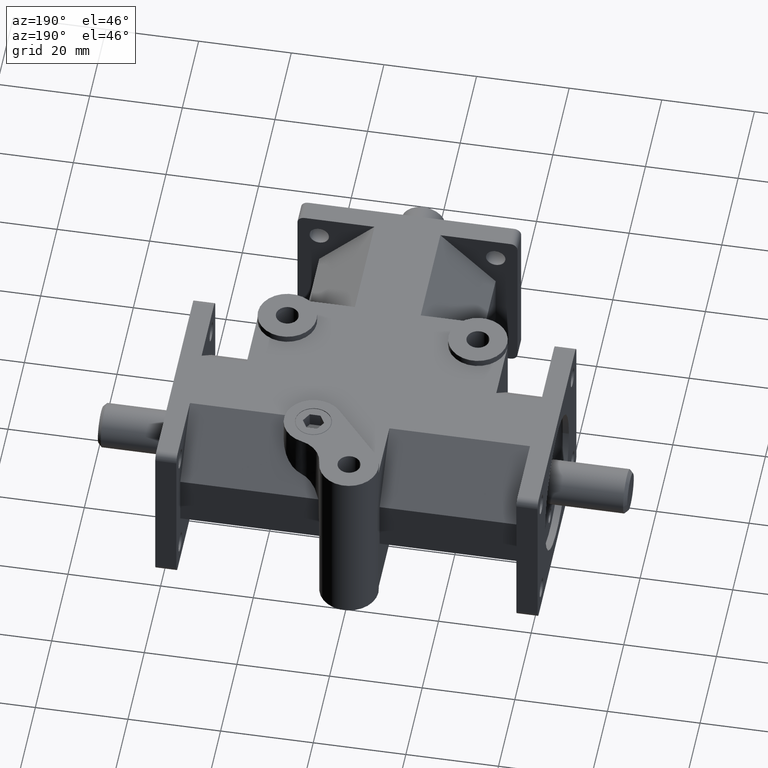
[diagram: clean part render]
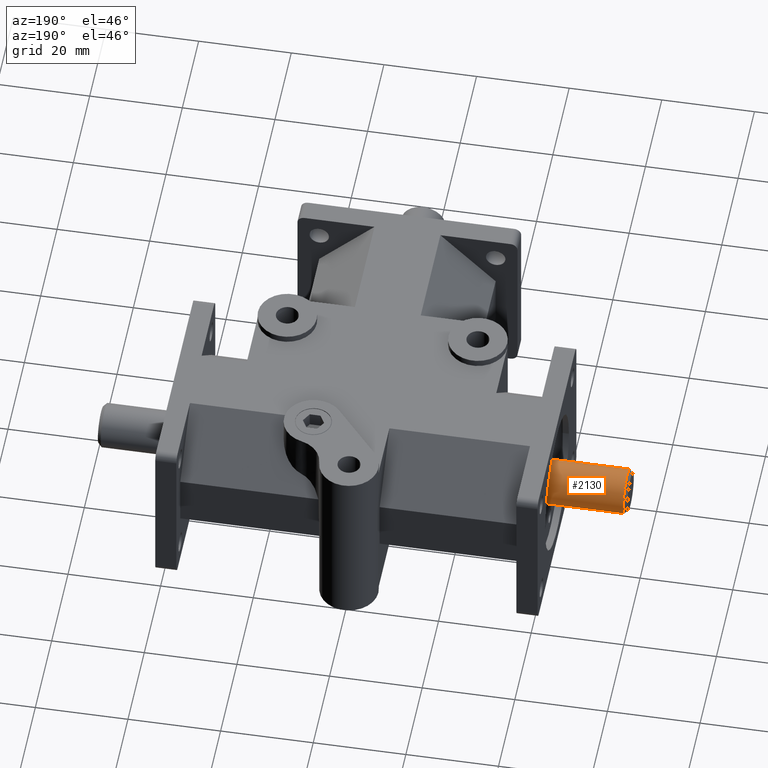
[diagram: same view with one face highlighted and labeled with its STEP entity id]
A machine part, auxiliary view. The second image highlights one B-rep face of the part: STEP entity #2130.
In plain terms, the highlighted cylindrical surface (bore or boss wall) has radius 4.7625 mm, axis along (-1, 0, 0).
Its self-contained STEP definition (entity closure, byte-faithful):
#192=FACE_OUTER_BOUND('',#340,.T.);
#340=EDGE_LOOP('',(#1737,#1738,#1739,#1740,#1741));
#438=CIRCLE('',#2244,0.1875);
#497=CIRCLE('',#2345,0.1875);
#498=CIRCLE('',#2346,0.1875);
#663=LINE('',#3538,#858);
#858=VECTOR('',#2859,0.1875);
#939=VERTEX_POINT('',#3166);
#1080=VERTEX_POINT('',#3534);
#1081=VERTEX_POINT('',#3535);
#1150=EDGE_CURVE('',#939,#939,#438,.T.);
#1335=EDGE_CURVE('',#1080,#1081,#497,.T.);
#1336=EDGE_CURVE('',#1081,#1080,#498,.T.);
#1337=EDGE_CURVE('',#1081,#939,#663,.T.);
#1737=ORIENTED_EDGE('',*,*,#1335,.F.);
#1738=ORIENTED_EDGE('',*,*,#1336,.F.);
#1739=ORIENTED_EDGE('',*,*,#1337,.T.);
#1740=ORIENTED_EDGE('',*,*,#1150,.F.);
#1741=ORIENTED_EDGE('',*,*,#1337,.F.);
#2049=CYLINDRICAL_SURFACE('',#2344,0.1875);
#2130=ADVANCED_FACE('',(#192),#2049,.T.);
#2244=AXIS2_PLACEMENT_3D('',#3167,#2527,#2528);
#2344=AXIS2_PLACEMENT_3D('',#3533,#2853,#2854);
#2345=AXIS2_PLACEMENT_3D('',#3536,#2855,#2856);
#2346=AXIS2_PLACEMENT_3D('',#3537,#2857,#2858);
#2527=DIRECTION('center_axis',(1.,0.,0.));
#2528=DIRECTION('ref_axis',(0.,1.,0.));
#2853=DIRECTION('center_axis',(-1.,0.,0.));
#2854=DIRECTION('ref_axis',(0.,1.,0.));
#2855=DIRECTION('center_axis',(-1.,0.,0.));
#2856=DIRECTION('ref_axis',(0.,-1.,0.));
#2857=DIRECTION('center_axis',(-1.,0.,0.));
#2858=DIRECTION('ref_axis',(0.,-1.,0.));
#2859=DIRECTION('',(1.,0.,0.));
#3166=CARTESIAN_POINT('',(-1.565,2.,2.29621274840129E-17));
#3167=CARTESIAN_POINT('Origin',(-1.565,2.1875,0.));
#3533=CARTESIAN_POINT('Origin',(-1.625,2.1875,0.));
#3534=CARTESIAN_POINT('',(-2.22,2.375,-2.29613691341696E-17));
#3535=CARTESIAN_POINT('',(-2.22,2.,2.29621274840129E-17));
#3536=CARTESIAN_POINT('Origin',(-2.22,2.1875,0.));
#3537=CARTESIAN_POINT('Origin',(-2.22,2.1875,0.));
#3538=CARTESIAN_POINT('',(-1.625,2.,2.29621274840129E-17));